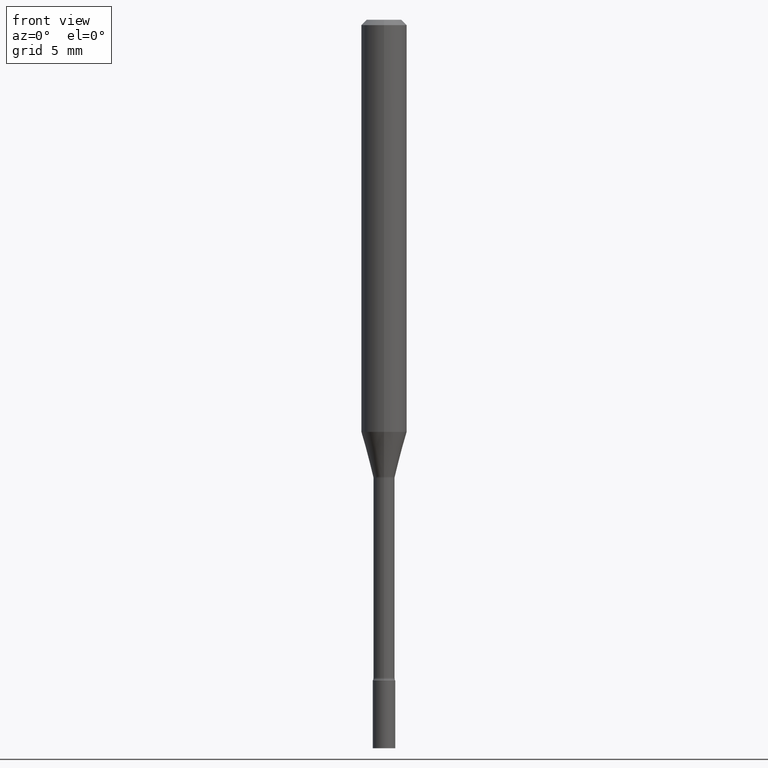
[diagram: clean part render]
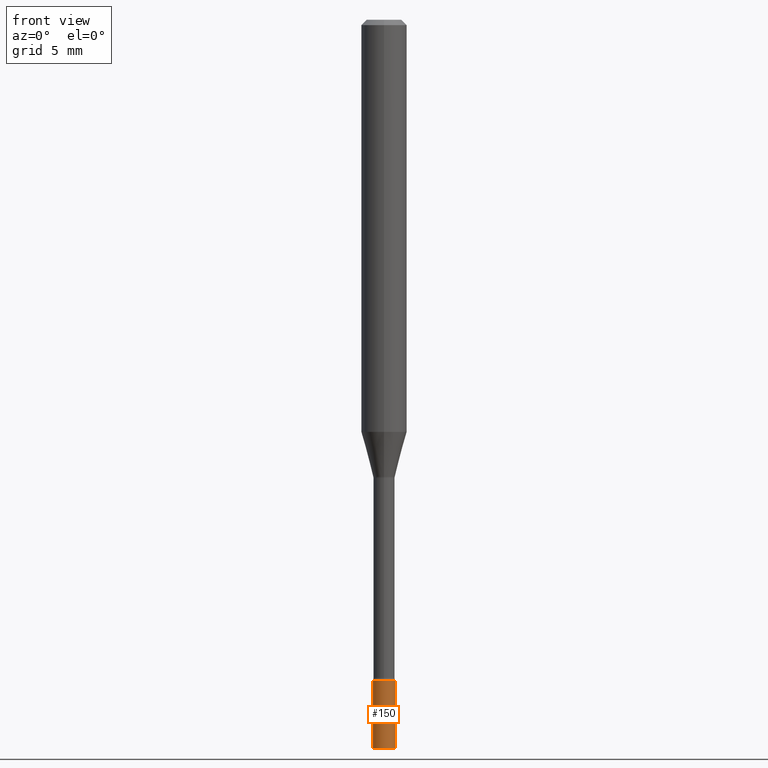
[diagram: same view with one face highlighted and labeled with its STEP entity id]
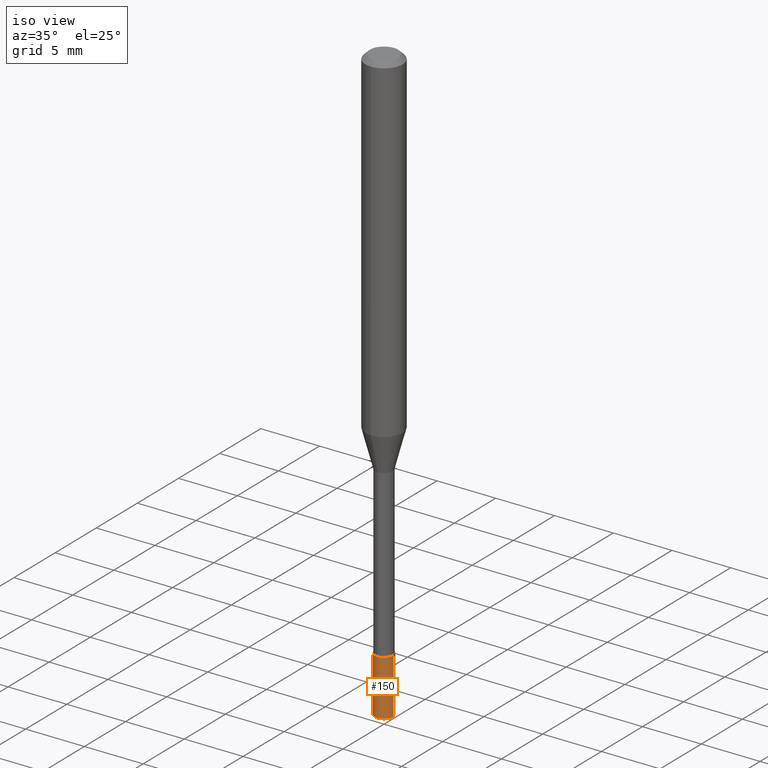
[diagram: same view with one face highlighted and labeled with its STEP entity id]
A machine part, front view. The second image highlights one B-rep face of the part: STEP entity #150.
A second angle (iso view) of the same face is appended — the face is thin or edge-on in the first view.
In plain terms, the highlighted cylindrical surface (edge-blend (fillet) strip) has radius 0.7874 mm, axis along (-0, 0, 1).
Its self-contained STEP definition (entity closure, byte-faithful):
#43 = VERTEX_POINT ( 'NONE', #359 ) ;
#49 = EDGE_CURVE ( 'NONE', #161, #193, #281, .T. ) ;
#58 = DIRECTION ( 'NONE',  ( -2.445468806185136597E-29, 3.491481338843145583E-15, 1.000000000000000000 ) ) ;
#64 = DIRECTION ( 'NONE',  ( 1.000000000000000000, -6.982962677686270655E-15, 0.000000000000000000 ) ) ;
#77 = CARTESIAN_POINT ( 'NONE',  ( -0.03099999999999999978, 2.202682480856310560E-16, -1.524869877979020612E-30 ) ) ;
#88 = DIRECTION ( 'NONE',  ( 1.000000000000000000, -6.982962677686266711E-15, 4.876176775795935232E-29 ) ) ;
#111 = LINE ( 'NONE', #77, #232 ) ;
#129 = ORIENTED_EDGE ( 'NONE', *, *, #49, .F. ) ;
#150 = ADVANCED_FACE ( 'NONE', ( #159 ), #494, .T. ) ;
#159 = FACE_OUTER_BOUND ( 'NONE', #184, .T. ) ;
#161 = VERTEX_POINT ( 'NONE', #216 ) ;
#171 = AXIS2_PLACEMENT_3D ( 'NONE', #182, #58, #197 ) ;
#182 = CARTESIAN_POINT ( 'NONE',  ( 4.890937612370273194E-29, -6.982962677686291165E-15, -2.000000000000000000 ) ) ;
#184 = EDGE_LOOP ( 'NONE', ( #289, #253, #498, #129 ) ) ;
#193 = VERTEX_POINT ( 'NONE', #264 ) ;
#197 = DIRECTION ( 'NONE',  ( 1.000000000000000000, -6.982962677686270655E-15, 0.000000000000000000 ) ) ;
#200 = DIRECTION ( 'NONE',  ( -2.445468806185136877E-29, 3.491481338843145188E-15, 1.000000000000000000 ) ) ;
#210 = CARTESIAN_POINT ( 'NONE',  ( 0.000000000000000000, 0.000000000000000000, 0.000000000000000000 ) ) ;
#216 = CARTESIAN_POINT ( 'NONE',  ( -0.03099999999999999978, -6.437986665088246838E-15, -1.813999999999999835 ) ) ;
#231 = AXIS2_PLACEMENT_3D ( 'NONE', #409, #437, #64 ) ;
#232 = VECTOR ( 'NONE', #251, 39.37007874015748143 ) ;
#235 = EDGE_CURVE ( 'NONE', #280, #43, #438, .T. ) ;
#238 = CARTESIAN_POINT ( 'NONE',  ( -0.03099999999999999978, -6.437986665088246838E-15, -2.000000000000000000 ) ) ;
#248 = AXIS2_PLACEMENT_3D ( 'NONE', #210, #453, #88 ) ;
#251 = DIRECTION ( 'NONE',  ( -2.445468806185136877E-29, 3.491481338843145188E-15, 1.000000000000000000 ) ) ;
#253 = ORIENTED_EDGE ( 'NONE', *, *, #235, .T. ) ;
#264 = CARTESIAN_POINT ( 'NONE',  ( 0.03099999999999999978, -6.550018991669739348E-15, -1.813999999999999835 ) ) ;
#280 = VERTEX_POINT ( 'NONE', #238 ) ;
#281 = CIRCLE ( 'NONE', #231, 0.03099999999999999978 ) ;
#285 = EDGE_CURVE ( 'NONE', #280, #161, #111, .T. ) ;
#289 = ORIENTED_EDGE ( 'NONE', *, *, #285, .F. ) ;
#312 = VECTOR ( 'NONE', #200, 39.37007874015748143 ) ;
#340 = LINE ( 'NONE', #418, #312 ) ;
#359 = CARTESIAN_POINT ( 'NONE',  ( 0.03099999999999999978, -7.199434520694564708E-15, -2.000000000000000000 ) ) ;
#375 = EDGE_CURVE ( 'NONE', #43, #193, #340, .T. ) ;
#409 = CARTESIAN_POINT ( 'NONE',  ( 4.436080414419837365E-29, -6.333547148661465016E-15, -1.813999999999999835 ) ) ;
#418 = CARTESIAN_POINT ( 'NONE',  ( 0.03099999999999999978, -2.164718430082742572E-16, 1.511614800496739984E-30 ) ) ;
#437 = DIRECTION ( 'NONE',  ( -2.445468806185136597E-29, 3.491481338843145583E-15, 1.000000000000000000 ) ) ;
#438 = CIRCLE ( 'NONE', #171, 0.03099999999999999978 ) ;
#453 = DIRECTION ( 'NONE',  ( -2.445468806185136597E-29, 3.491481338843145583E-15, 1.000000000000000000 ) ) ;
#494 = CYLINDRICAL_SURFACE ( 'NONE', #248, 0.03099999999999999978 ) ;
#498 = ORIENTED_EDGE ( 'NONE', *, *, #375, .T. ) ;